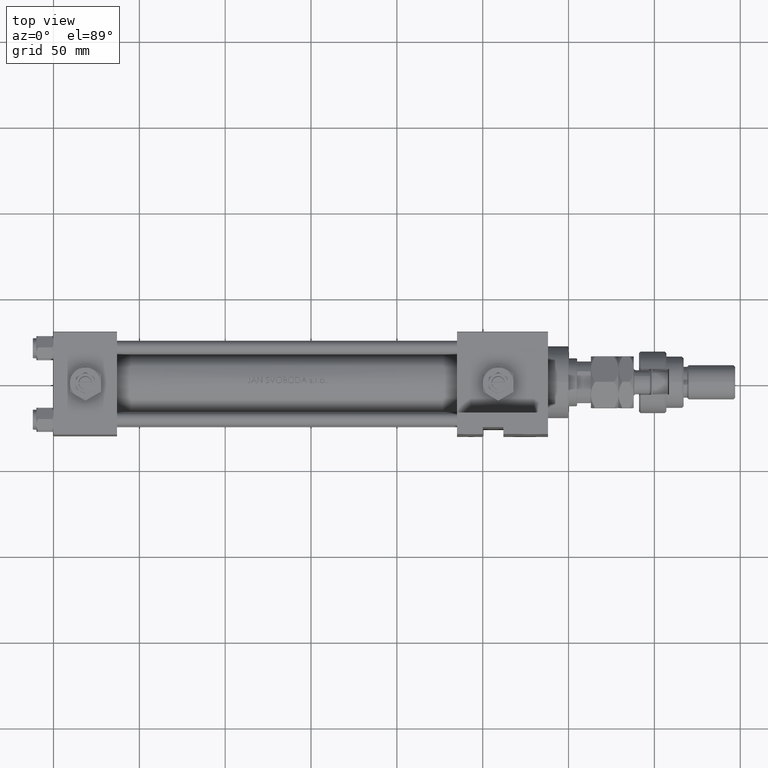
[diagram: clean part render]
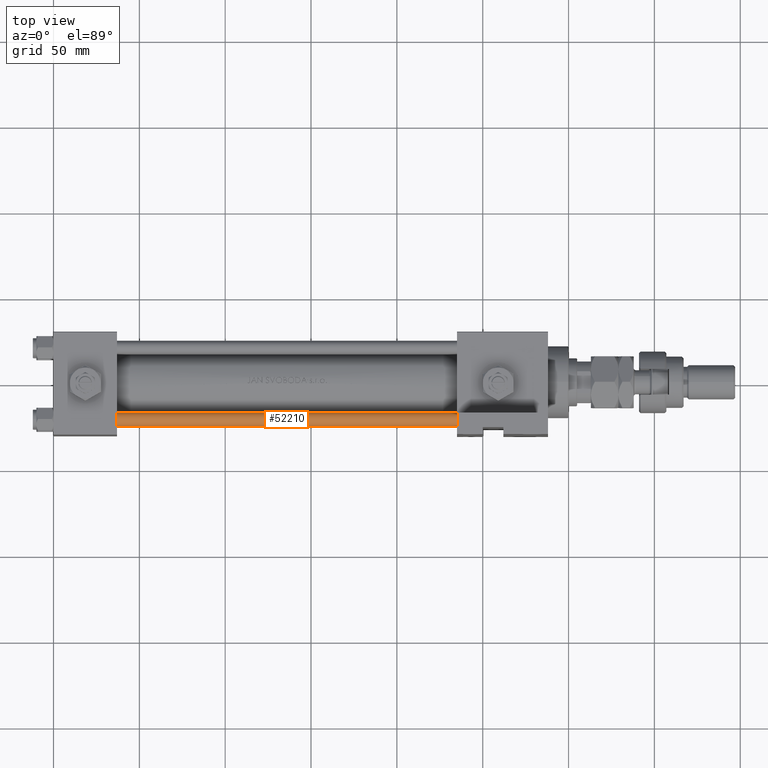
[diagram: same view with one face highlighted and labeled with its STEP entity id]
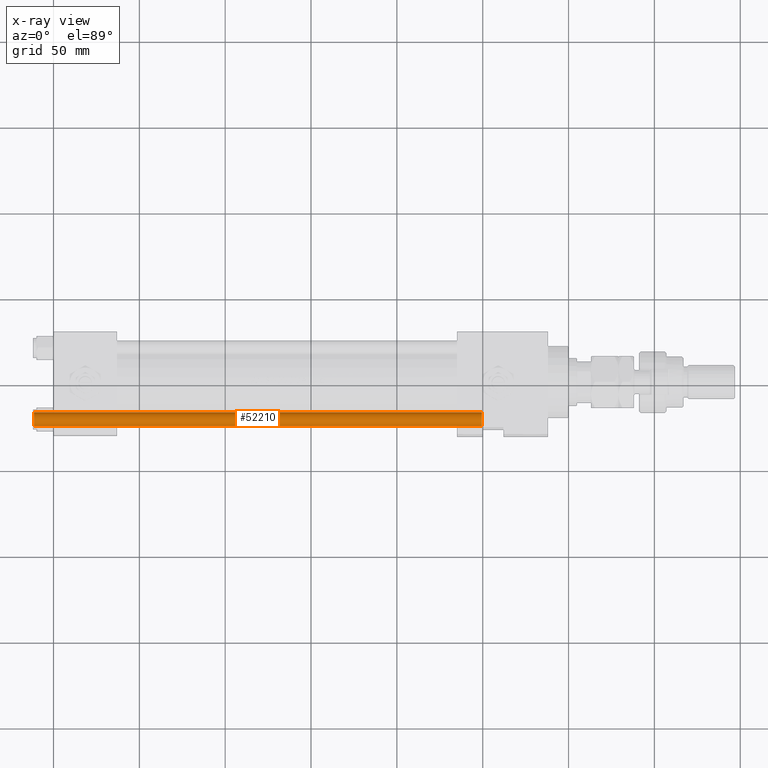
[diagram: x-ray of the same camera — body ghosted, the highlighted face saturated]
A machine part, top view. The second image highlights one B-rep face of the part: STEP entity #52210.
The next image is the same camera in x-ray: the body ghosted, the highlighted face saturated — about 0% of this face is hidden behind the body in this view.
In plain terms, the highlighted cylindrical surface (edge-blend (fillet) strip) has radius 4 mm, axis along (-1, 0, 0).
Its self-contained STEP definition (entity closure, byte-faithful):
#19 = DIRECTION ( 'NONE',  ( 1.000000000000000000, 0.000000000000000000, 0.000000000000000000 ) ) ;
#268 = ORIENTED_EDGE ( 'NONE', *, *, #18813, .F. ) ;
#3748 = CYLINDRICAL_SURFACE ( 'NONE', #28125, 4.000000000000000000 ) ;
#5072 = ORIENTED_EDGE ( 'NONE', *, *, #27520, .T. ) ;
#5468 = CARTESIAN_POINT ( 'NONE',  ( 4.000000000000000000, 4.898587196589412829E-16, 0.5000000000000559552 ) ) ;
#9113 = DIRECTION ( 'NONE',  ( -0.000000000000000000, -0.000000000000000000, -1.000000000000000000 ) ) ;
#10277 = AXIS2_PLACEMENT_3D ( 'NONE', #49373, #13016, #19 ) ;
#11057 = FACE_OUTER_BOUND ( 'NONE', #17732, .T. ) ;
#11525 = VERTEX_POINT ( 'NONE', #16368 ) ;
#13016 = DIRECTION ( 'NONE',  ( -0.000000000000000000, -0.000000000000000000, 1.000000000000000000 ) ) ;
#13175 = LINE ( 'NONE', #29718, #48482 ) ;
#13520 = CARTESIAN_POINT ( 'NONE',  ( 4.000000000000000000, 4.898587196589412829E-16, 261.5000000000000000 ) ) ;
#15105 = DIRECTION ( 'NONE',  ( -0.000000000000000000, -0.000000000000000000, -1.000000000000000000 ) ) ;
#16171 = DIRECTION ( 'NONE',  ( -1.000000000000000000, 0.000000000000000000, 0.000000000000000000 ) ) ;
#16368 = CARTESIAN_POINT ( 'NONE',  ( -4.000000000000000000, 0.000000000000000000, 261.5000000000000000 ) ) ;
#17732 = EDGE_LOOP ( 'NONE', ( #268, #45045, #26625, #5072 ) ) ;
#18808 = CARTESIAN_POINT ( 'NONE',  ( 0.000000000000000000, 0.000000000000000000, 261.5000000000000000 ) ) ;
#18813 = EDGE_CURVE ( 'NONE', #34762, #50600, #52284, .T. ) ;
#19992 = AXIS2_PLACEMENT_3D ( 'NONE', #18808, #43773, #39692 ) ;
#21267 = CARTESIAN_POINT ( 'NONE',  ( -4.000000000000000000, 0.000000000000000000, 0.5000000000000559552 ) ) ;
#23190 = EDGE_CURVE ( 'NONE', #34762, #11525, #36447, .T. ) ;
#25985 = VERTEX_POINT ( 'NONE', #21267 ) ;
#26625 = ORIENTED_EDGE ( 'NONE', *, *, #33878, .T. ) ;
#27520 = EDGE_CURVE ( 'NONE', #25985, #50600, #38848, .T. ) ;
#27591 = DIRECTION ( 'NONE',  ( -0.000000000000000000, -0.000000000000000000, -1.000000000000000000 ) ) ;
#28125 = AXIS2_PLACEMENT_3D ( 'NONE', #44692, #27591, #16171 ) ;
#29718 = CARTESIAN_POINT ( 'NONE',  ( -4.000000000000000000, 0.000000000000000000, 262.0000000000000000 ) ) ;
#32199 = CARTESIAN_POINT ( 'NONE',  ( 4.000000000000000000, 4.898587196589412829E-16, 262.0000000000000000 ) ) ;
#33878 = EDGE_CURVE ( 'NONE', #11525, #25985, #13175, .T. ) ;
#34762 = VERTEX_POINT ( 'NONE', #13520 ) ;
#35305 = VECTOR ( 'NONE', #15105, 1000.000000000000000 ) ;
#36447 = CIRCLE ( 'NONE', #19992, 4.000000000000000000 ) ;
#38848 = CIRCLE ( 'NONE', #10277, 4.000000000000000000 ) ;
#39692 = DIRECTION ( 'NONE',  ( 1.000000000000000000, 0.000000000000000000, 0.000000000000000000 ) ) ;
#43773 = DIRECTION ( 'NONE',  ( 0.000000000000000000, 0.000000000000000000, -1.000000000000000000 ) ) ;
#44692 = CARTESIAN_POINT ( 'NONE',  ( 0.000000000000000000, 0.000000000000000000, 262.0000000000000000 ) ) ;
#45045 = ORIENTED_EDGE ( 'NONE', *, *, #23190, .T. ) ;
#48482 = VECTOR ( 'NONE', #9113, 1000.000000000000000 ) ;
#49373 = CARTESIAN_POINT ( 'NONE',  ( 0.000000000000000000, 0.000000000000000000, 0.5000000000000559552 ) ) ;
#50600 = VERTEX_POINT ( 'NONE', #5468 ) ;
#52210 = ADVANCED_FACE ( 'NONE', ( #11057 ), #3748, .T. ) ;
#52284 = LINE ( 'NONE', #32199, #35305 ) ;